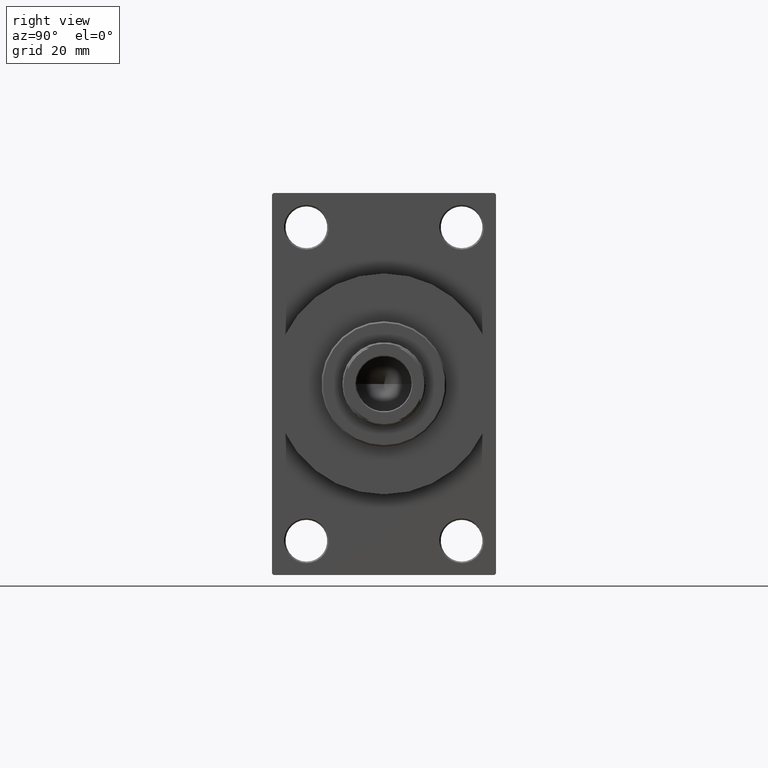
[diagram: clean part render]
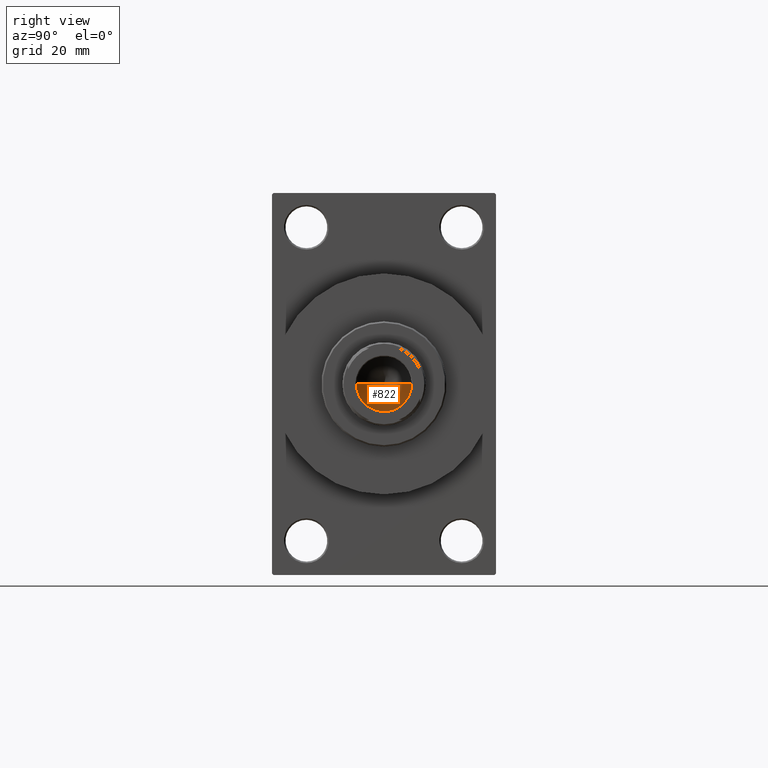
[diagram: same view with one face highlighted and labeled with its STEP entity id]
A machine part, right view. The second image highlights one B-rep face of the part: STEP entity #822.
In plain terms, the highlighted conical surface has half-angle 59 deg.
Its self-contained STEP definition (entity closure, byte-faithful):
#410 = DIRECTION ( 'NONE',  ( 0.8571673007021117785, 0.000000000000000000, 0.5150380749100550437 ) ) ;
#822 = ADVANCED_FACE ( 'NONE', ( #24708 ), #32693, .F. ) ;
#2605 = EDGE_CURVE ( 'NONE', #16131, #16560, #11167, .T. ) ;
#8455 = EDGE_CURVE ( 'NONE', #16131, #46756, #18419, .T. ) ;
#9065 = CARTESIAN_POINT ( 'NONE',  ( -9.249999999999994671, 1.132798289211300909E-15, 107.0000000000000142 ) ) ;
#11167 = LINE ( 'NONE', #26652, #22829 ) ;
#14350 = CARTESIAN_POINT ( 'NONE',  ( -9.249999999999994671, 1.132798289211300909E-15, 107.0000000000000142 ) ) ;
#16050 = CARTESIAN_POINT ( 'NONE',  ( 0.000000000000000000, 0.000000000000000000, 107.0000000000000142 ) ) ;
#16131 = VERTEX_POINT ( 'NONE', #27217 ) ;
#16560 = VERTEX_POINT ( 'NONE', #32406 ) ;
#16985 = ORIENTED_EDGE ( 'NONE', *, *, #27905, .T. ) ;
#18419 = LINE ( 'NONE', #14350, #23028 ) ;
#21133 = DIRECTION ( 'NONE',  ( 1.000000000000000000, 0.000000000000000000, 0.000000000000000000 ) ) ;
#21747 = AXIS2_PLACEMENT_3D ( 'NONE', #16050, #46090, #30605 ) ;
#22829 = VECTOR ( 'NONE', #410, 1000.000000000000000 ) ;
#23028 = VECTOR ( 'NONE', #43209, 1000.000000000000000 ) ;
#24708 = FACE_OUTER_BOUND ( 'NONE', #41936, .T. ) ;
#26652 = CARTESIAN_POINT ( 'NONE',  ( 9.249999999999994671, 0.000000000000000000, 107.0000000000000142 ) ) ;
#27217 = CARTESIAN_POINT ( 'NONE',  ( -1.063698371622866236E-14, 0.000000000000000000, 101.4420392739950785 ) ) ;
#27905 = EDGE_CURVE ( 'NONE', #16560, #46756, #28591, .T. ) ;
#28591 = CIRCLE ( 'NONE', #21747, 9.249999999999994671 ) ;
#30605 = DIRECTION ( 'NONE',  ( 1.000000000000000000, 0.000000000000000000, 0.000000000000000000 ) ) ;
#32354 = CARTESIAN_POINT ( 'NONE',  ( 0.000000000000000000, 0.000000000000000000, 107.0000000000000142 ) ) ;
#32406 = CARTESIAN_POINT ( 'NONE',  ( 9.249999999999994671, 0.000000000000000000, 107.0000000000000142 ) ) ;
#32693 = CONICAL_SURFACE ( 'NONE', #44860, 9.249999999999994671, 1.029744258676653423 ) ;
#36921 = ORIENTED_EDGE ( 'NONE', *, *, #2605, .T. ) ;
#37833 = ORIENTED_EDGE ( 'NONE', *, *, #8455, .F. ) ;
#39258 = DIRECTION ( 'NONE',  ( -0.000000000000000000, -0.000000000000000000, 1.000000000000000000 ) ) ;
#41936 = EDGE_LOOP ( 'NONE', ( #37833, #36921, #16985 ) ) ;
#43209 = DIRECTION ( 'NONE',  ( -0.8571673007021117785, 1.049727191138617956E-16, 0.5150380749100550437 ) ) ;
#44860 = AXIS2_PLACEMENT_3D ( 'NONE', #32354, #39258, #21133 ) ;
#46090 = DIRECTION ( 'NONE',  ( -0.000000000000000000, -0.000000000000000000, 1.000000000000000000 ) ) ;
#46756 = VERTEX_POINT ( 'NONE', #9065 ) ;